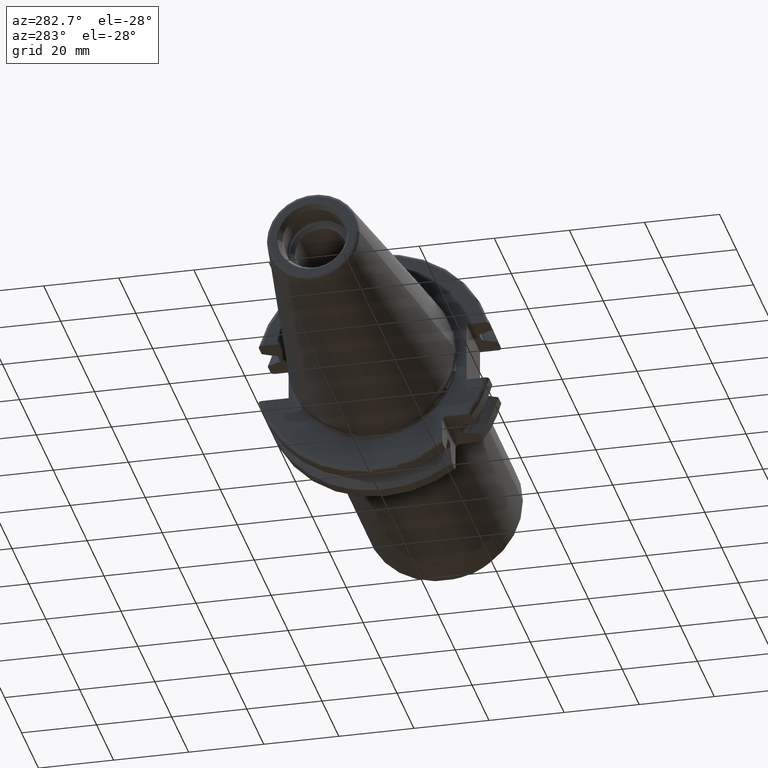
[diagram: clean part render]
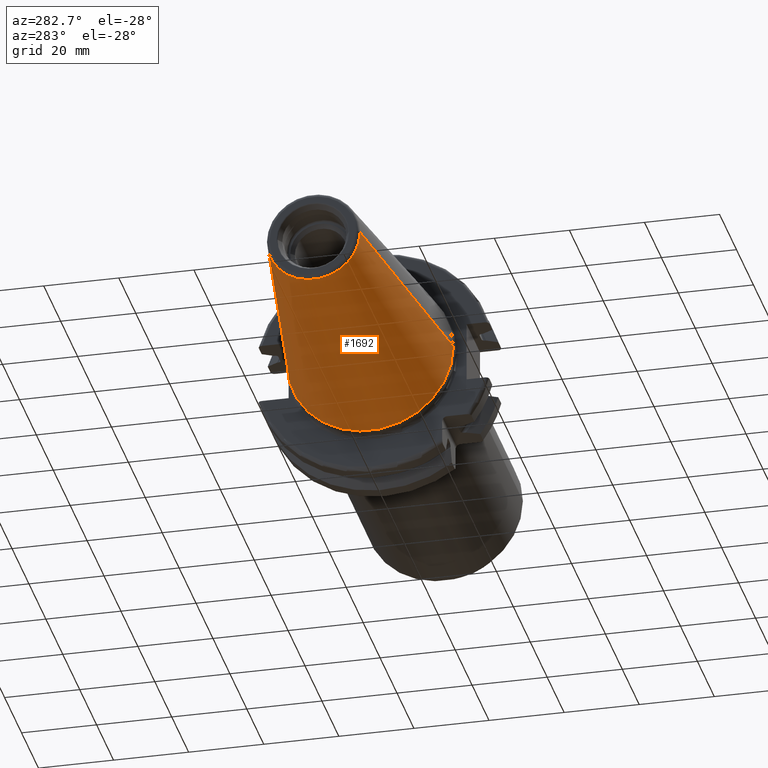
[diagram: same view with one face highlighted and labeled with its STEP entity id]
A machine part, auxiliary view. The second image highlights one B-rep face of the part: STEP entity #1692.
In plain terms, the highlighted conical surface has half-angle 8.298 deg.
Its self-contained STEP definition (entity closure, byte-faithful):
#32=CARTESIAN_POINT('',(-6.743710273571E1,0.E0,0.E0));
#33=DIRECTION('',(-1.E0,0.E0,0.E0));
#34=DIRECTION('',(0.E0,1.E0,0.E0));
#35=AXIS2_PLACEMENT_3D('',#32,#33,#34);
#47=DIRECTION('',(-9.895312636440E-1,-1.443186691705E-1,0.E0));
#48=VECTOR('',#47,6.765568998391E1);
#49=CARTESIAN_POINT('',(-4.896823332305E-1,2.215358204157E1,0.E0));
#50=LINE('',#49,#48);
#51=DIRECTION('',(-9.895312636440E-1,1.443186691705E-1,0.E0));
#52=VECTOR('',#51,6.765568998391E1);
#53=CARTESIAN_POINT('',(-4.896823332305E-1,-2.215358204157E1,0.E0));
#54=LINE('',#53,#52);
#55=CARTESIAN_POINT('',(-4.896823332305E-1,0.E0,0.E0));
#56=DIRECTION('',(-1.E0,0.E0,0.E0));
#57=DIRECTION('',(0.E0,1.E0,0.E0));
#58=AXIS2_PLACEMENT_3D('',#55,#56,#57);
#1356=CARTESIAN_POINT('',(-6.743710273571E1,1.238960290128E1,0.E0));
#1358=VERTEX_POINT('',#1356);
#1360=CARTESIAN_POINT('',(-6.743710273571E1,-1.238960290128E1,0.E0));
#1362=VERTEX_POINT('',#1360);
#1424=CARTESIAN_POINT('',(-4.896823332305E-1,2.215358204157E1,0.E0));
#1425=VERTEX_POINT('',#1424);
#1426=CARTESIAN_POINT('',(-4.896823332305E-1,-2.215358204157E1,0.E0));
#1427=VERTEX_POINT('',#1426);
#1680=CARTESIAN_POINT('',(-3.396339253447E1,0.E0,0.E0));
#1681=DIRECTION('',(1.E0,0.E0,0.E0));
#1682=DIRECTION('',(0.E0,-1.E0,0.E0));
#1683=AXIS2_PLACEMENT_3D('',#1680,#1681,#1682);
#1684=CONICAL_SURFACE('',#1683,1.727159247143E1,8.297826828206E0);
#1685=ORIENTED_EDGE('',*,*,#1670,.T.);
#1686=ORIENTED_EDGE('',*,*,#1647,.T.);
#1687=ORIENTED_EDGE('',*,*,#1674,.F.);
#1689=ORIENTED_EDGE('',*,*,#1688,.F.);
#1690=EDGE_LOOP('',(#1685,#1686,#1687,#1689));
#1691=FACE_OUTER_BOUND('',#1690,.F.);
#1692=ADVANCED_FACE('',(#1691),#1684,.T.);
#36=CIRCLE('',#35,1.238960290128E1);
#59=CIRCLE('',#58,2.215358204157E1);
#1647=EDGE_CURVE('',#1358,#1362,#36,.T.);
#1670=EDGE_CURVE('',#1425,#1358,#50,.T.);
#1674=EDGE_CURVE('',#1427,#1362,#54,.T.);
#1688=EDGE_CURVE('',#1425,#1427,#59,.T.);